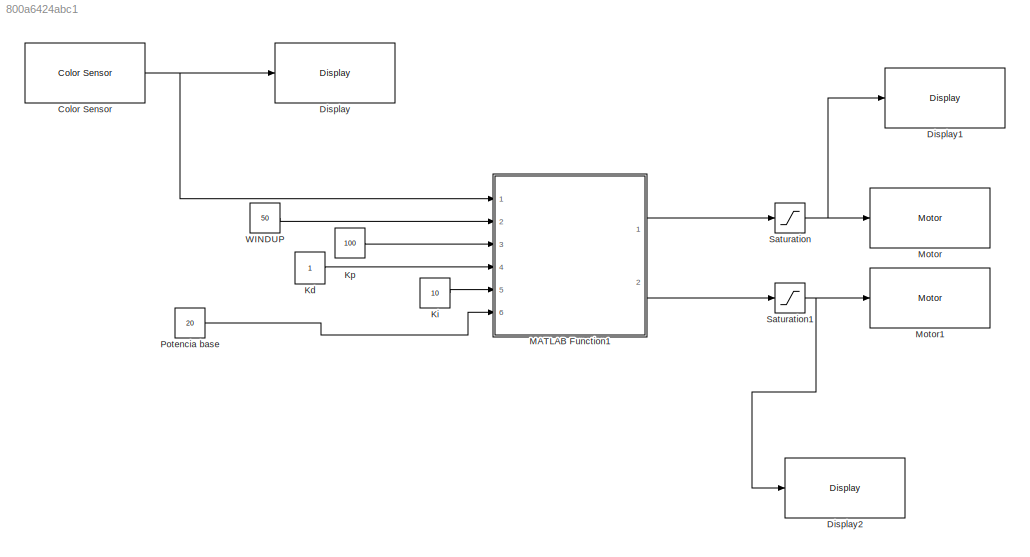
MODEL slx_800a6424abc1
KIND model
CONFIG AbsTol = auto
CONFIG EnableMultiTasking = on
CONFIG FixedStep = auto
CONFIG MaxStep = auto
CONFIG MinStep = auto
CONFIG RelTol = 1e-3
CONFIG SampleTimeConstraint = Unconstrained
CONFIG Solver = FixedStepAuto
CONFIG SolverName = FixedStepAuto
CONFIG StartTime = 0.0
CONFIG StopTime = 10.0
BLOCK [Reference] Color Sensor  REF=legoev3lib/Color Sensor
  Ports = [0, 1]
  SourceBlock = legoev3lib/Color Sensor
  SourceType = LEGO MINDSTORMS EV3 Color Sensor
BLOCK [Reference] Display  REF=legoev3lib/Display
  Ports = [1]
  SourceBlock = legoev3lib/Display
  SourceType = LEGO MINDSTORMS EV3 Display
BLOCK [Reference] Display1  REF=legoev3lib/Display
  Ports = [1]
  SourceBlock = legoev3lib/Display
  SourceType = LEGO MINDSTORMS EV3 Display
BLOCK [Reference] Display2  REF=legoev3lib/Display
  Ports = [1]
  SourceBlock = legoev3lib/Display
  SourceType = LEGO MINDSTORMS EV3 Display
BLOCK [Constant] Kd
BLOCK [Constant] Ki
  Value = 10
BLOCK [Constant] Kp 
  Value = 100
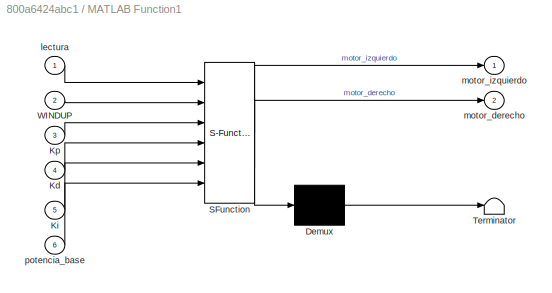
BLOCK [SubSystem] MATLAB Function1
  ErrorFcn = Stateflow.Translate.translate
  PermitHierarchicalResolution = ExplicitOnly
  Ports = [6, 2]
  RequestExecContextInheritance = off
  SFBlockType = MATLAB Function
  TreatAsAtomicUnit = on
  Variant = off
BLOCK [Demux] MATLAB Function1/ Demux 
  Outputs = 1
  Ports = [1, 1]
BLOCK [S-Function] MATLAB Function1/ SFunction 
  EnableBusSupport = on
  FunctionName = sf_sfun
  PortCounts = [6 3]
  Ports = [6, 3]
  SFcnIsStateOwnerBlock = off
  SFunctionDeploymentMode = off
  Tag = Stateflow S-Function pid_line_following 1
BLOCK [Terminator] MATLAB Function1/ Terminator 
BLOCK [Inport] MATLAB Function1/Kd
  IconDisplay = Port number
  Port = 4
BLOCK [Inport] MATLAB Function1/Ki
  IconDisplay = Port number
  Port = 5
BLOCK [Inport] MATLAB Function1/Kp
  IconDisplay = Port number
  Port = 3
BLOCK [Inport] MATLAB Function1/WINDUP
  IconDisplay = Port number
  Port = 2
BLOCK [Inport] MATLAB Function1/lectura
  IconDisplay = Port number
BLOCK [Outport] MATLAB Function1/motor_derecho
  IconDisplay = Port number
  Port = 2
BLOCK [Outport] MATLAB Function1/motor_izquierdo
  IconDisplay = Port number
BLOCK [Inport] MATLAB Function1/potencia_base
  IconDisplay = Port number
  Port = 6
BLOCK [Reference] Motor  REF=legoev3lib/Motor
  Ports = [1]
  SourceBlock = legoev3lib/Motor
  SourceType = LEGO MINDSTORMS EV3 Motor
BLOCK [Reference] Motor1  REF=legoev3lib/Motor
  Ports = [1]
  SourceBlock = legoev3lib/Motor
  SourceType = LEGO MINDSTORMS EV3 Motor
BLOCK [Constant] Potencia base
  Value = 20
BLOCK [Saturate] Saturation
  InputPortMap = u0
  LowerLimit = -50
  Ports = [1, 1]
  UpperLimit = 50
BLOCK [Saturate] Saturation1
  InputPortMap = u0
  LowerLimit = -50
  Ports = [1, 1]
  UpperLimit = 50
BLOCK [Constant] WINDUP
  Value = 50
NET Color Sensor:1 -> Display:1, MATLAB Function1:1
LINE Kd:1 -> MATLAB Function1:4
LINE Ki:1 -> MATLAB Function1:5
LINE Kp :1 -> MATLAB Function1:3
LINE MATLAB Function1:1 -> Saturation:1
LINE MATLAB Function1:2 -> Saturation1:1
LINE Potencia base:1 -> MATLAB Function1:6
NET Saturation1:1 -> Display2:1, Motor1:1
NET Saturation:1 -> Display1:1, Motor:1
LINE WINDUP:1 -> MATLAB Function1:2
note: NET lines group one-source signal fan-out (src -> all destinations, sorted); 1:1 wires keep LINE
CHART MATLAB Function1 states=1 transitions=1
  STATE_LABEL 'eML_blk_kernel()'
  STATE_LABEL 'SCRIPT:\nfunction [motor_izquierdo, motor_derecho]    = calibrar_luz_sensor(lectura, WINDUP, Kp, Kd, Ki, potencia_base)\n    negro = double(5);\n    blanco = double(72);\n    NEGRO = double(35);\n    BLANCO = double(70);\n    \n    lectura = double(lectura);\n    lectura_recta = double((lectura*(BLANCO-NEGRO)/(blanco-negro))+((negro*(BLANCO-NEGRO))+(NEGRO*(blanco-negro)))/(blanco-negro));\n    error = lect...<+585ch>'
